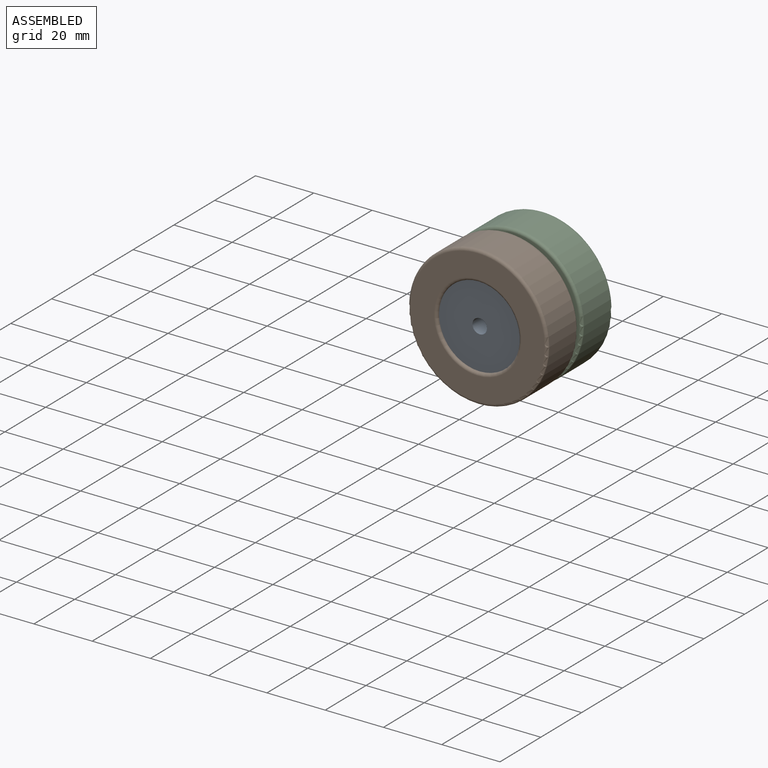
[diagram: assembled view]
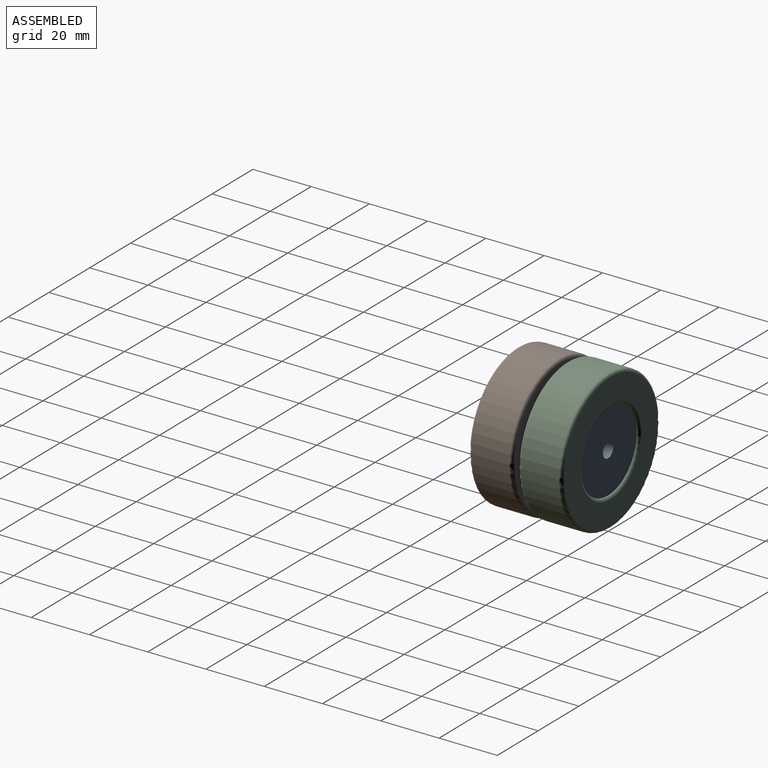
[diagram: assembled view, second angle]
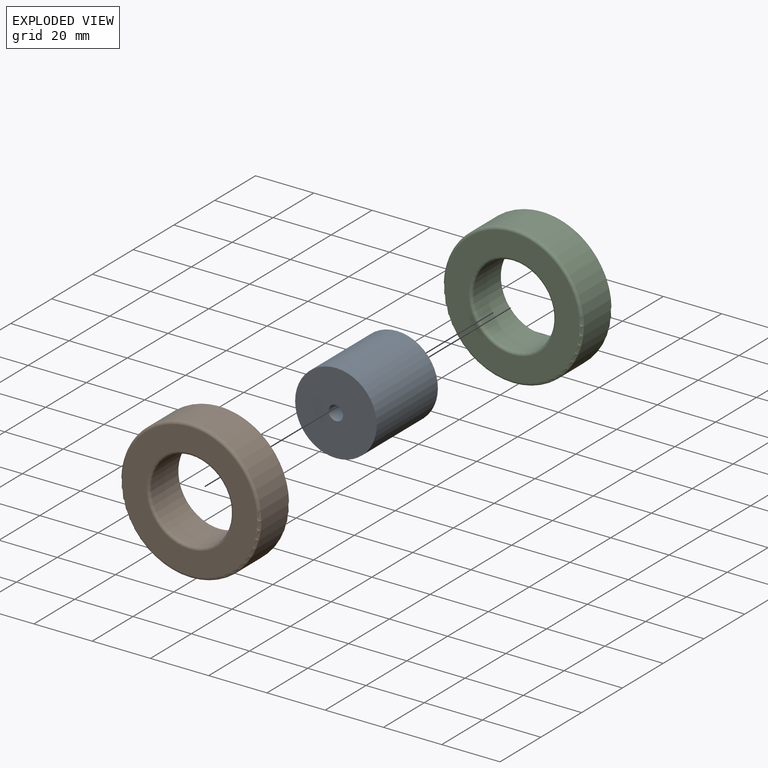
[diagram: exploded view]
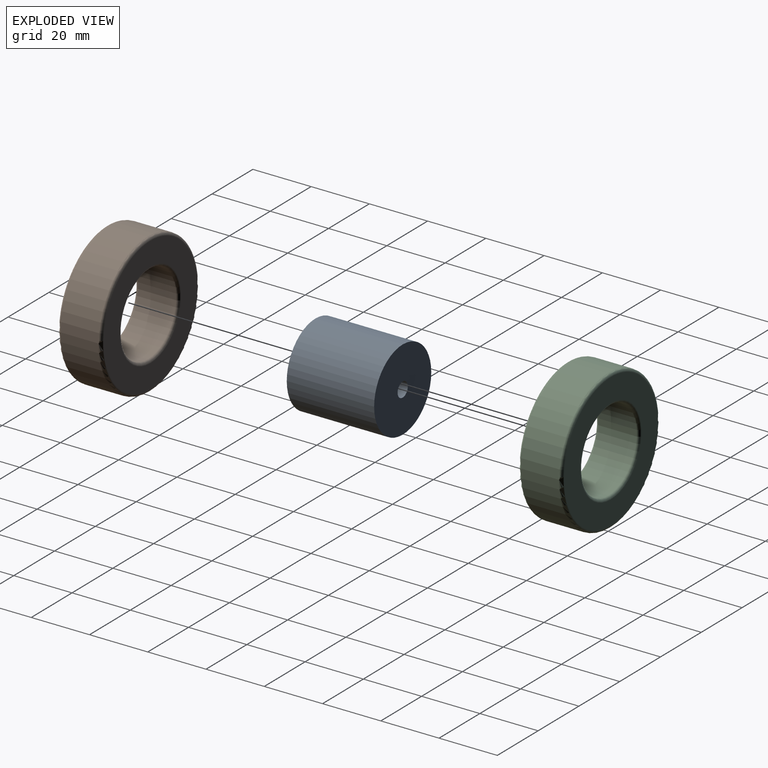
[diagram: exploded view, second angle]
ASSEMBLY  parts=3 mates=2
PART A: 4 faces, bbox 28x30x28 mm
  f0: cylinder r=14mm len=30mm, axis (0,1,0), area 2638.9mm2, adj f1,f2
  f1: plane 28x28mm, normal (0,-1,0), area 596.1mm2, adj f0,f3
  f2: plane 28x28mm, normal (0,1,0), area 596.1mm2, adj f0,f3
  f3: cylinder r=2.5mm len=30mm, axis (0,1,0), area 471.2mm2, adj f1,f2
PART B: 8 faces, bbox 52x15x52 mm
  f0: cylinder r=14mm len=28mm, axis (0,1,0), area 1143.5mm2, adj f3,f6
  f1: cylinder r=24mm len=48mm, axis (0,1,0), area 1960.4mm2, adj f4,f7
  f2: plane 46x46mm, normal (0,-1,0), area 955mm2, adj f3,f4
  f3: torus R=15mm, axis (0,-1,0), area 141.8mm2, adj f0,f2
  f4: torus R=23mm, axis (0,-1,0), area 233.3mm2, adj f1,f2
  f5: plane 46x46mm, normal (0,1,0), area 955mm2, adj f6,f7
  f6: torus R=15mm, axis (0,1,0), area 141.8mm2, adj f0,f5
  f7: torus R=23mm, axis (0,1,0), area 233.3mm2, adj f1,f5
PART C: same geometry as B
PLACE A t=(-48.76,0,42.85)mm
PLACE B t=(-48.76,-23.5,42.85)mm
PLACE C t=(-48.76,-6.5,42.85)mm
MATE fastened C.f0 <-> A.f0  axis (0,1,0) through (0,1,0)mm
MATE fastened B.f0 <-> A.f0  axis (0,-1,0) through (0,-31,0)mm
